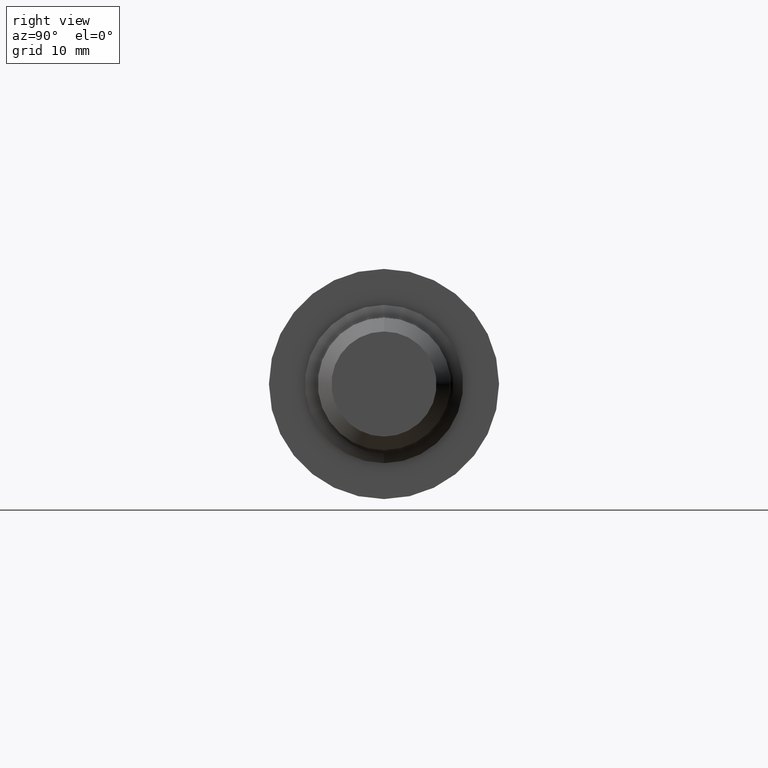
[diagram: clean part render]
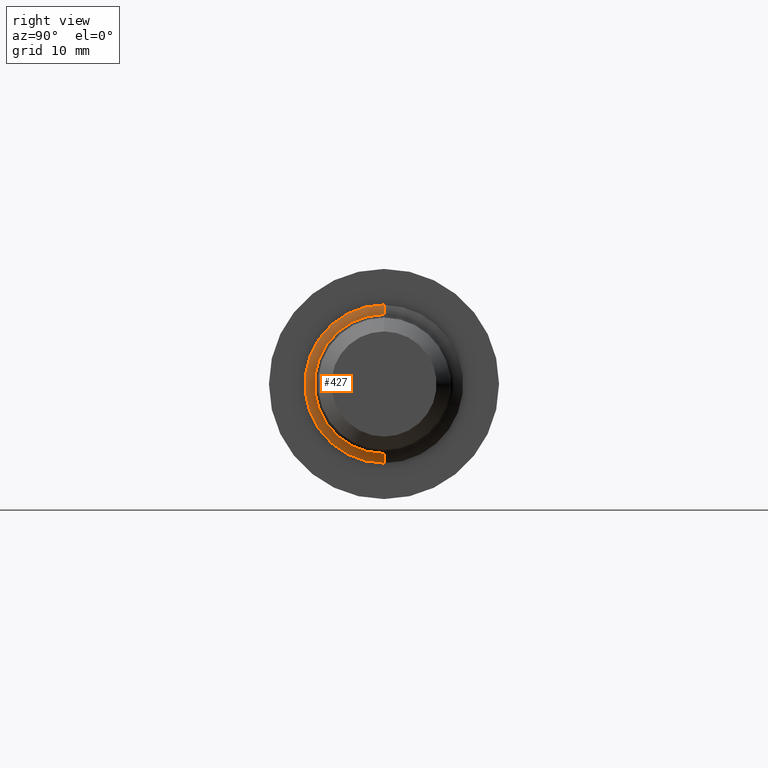
[diagram: same view with one face highlighted and labeled with its STEP entity id]
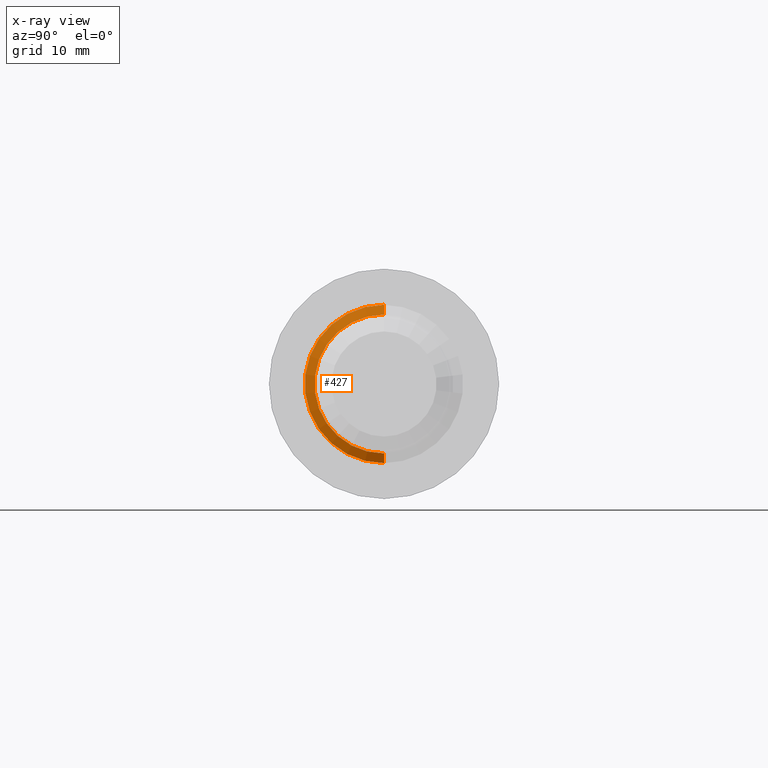
[diagram: x-ray of the same camera — body ghosted, the highlighted face saturated]
A machine part, right view. The second image highlights one B-rep face of the part: STEP entity #427.
The next image is the same camera in x-ray: the body ghosted, the highlighted face saturated — about 0% of this face is hidden behind the body in this view.
In plain terms, the highlighted conical surface has half-angle 60 deg.
Its self-contained STEP definition (entity closure, byte-faithful):
#4 = CARTESIAN_POINT ( 'NONE',  ( 2.753479651413640372, 0.000000000000000000, 0.3055999999999998162 ) ) ;
#8 = VECTOR ( 'NONE', #114, 39.37007874015748143 ) ;
#9 = CARTESIAN_POINT ( 'NONE',  ( 2.753479651413640372, 0.000000000000000000, 0.000000000000000000 ) ) ;
#18 = AXIS2_PLACEMENT_3D ( 'NONE', #9, #399, #62 ) ;
#28 = ORIENTED_EDGE ( 'NONE', *, *, #84, .F. ) ;
#35 = VERTEX_POINT ( 'NONE', #272 ) ;
#37 = CARTESIAN_POINT ( 'NONE',  ( 2.753479651413640372, 0.000000000000000000, 0.000000000000000000 ) ) ;
#62 = DIRECTION ( 'NONE',  ( 0.000000000000000000, 0.000000000000000000, 1.000000000000000000 ) ) ;
#74 = EDGE_CURVE ( 'NONE', #472, #35, #157, .T. ) ;
#84 = EDGE_CURVE ( 'NONE', #489, #210, #437, .T. ) ;
#111 = EDGE_CURVE ( 'NONE', #210, #35, #691, .T. ) ;
#114 = DIRECTION ( 'NONE',  ( -0.5000000000000093259, 0.000000000000000000, 0.8660254037844331565 ) ) ;
#145 = DIRECTION ( 'NONE',  ( 0.000000000000000000, 0.000000000000000000, 1.000000000000000000 ) ) ;
#157 = LINE ( 'NONE', #278, #8 ) ;
#178 = ORIENTED_EDGE ( 'NONE', *, *, #680, .T. ) ;
#190 = DIRECTION ( 'NONE',  ( -1.000000000000000000, -0.000000000000000000, -0.000000000000000000 ) ) ;
#210 = VERTEX_POINT ( 'NONE', #569 ) ;
#243 = FACE_OUTER_BOUND ( 'NONE', #364, .T. ) ;
#272 = CARTESIAN_POINT ( 'NONE',  ( 2.728999999999999648, 0.000000000000000000, 0.3479999999999999760 ) ) ;
#278 = CARTESIAN_POINT ( 'NONE',  ( 2.753479651413640372, 0.000000000000000000, 0.3056000000000003713 ) ) ;
#294 = DIRECTION ( 'NONE',  ( -1.000000000000000000, -0.000000000000000000, -0.000000000000000000 ) ) ;
#321 = CONICAL_SURFACE ( 'NONE', #642, 0.3056000000000003713, 1.047197551196586973 ) ;
#322 = CARTESIAN_POINT ( 'NONE',  ( 2.753479651413640372, 3.742520618194316303E-17, -0.3056000000000003713 ) ) ;
#327 = DIRECTION ( 'NONE',  ( -0.5000000000000093259, 1.060575238724900259E-16, -0.8660254037844331565 ) ) ;
#337 = ORIENTED_EDGE ( 'NONE', *, *, #74, .T. ) ;
#364 = EDGE_LOOP ( 'NONE', ( #28, #178, #337, #420 ) ) ;
#371 = CARTESIAN_POINT ( 'NONE',  ( 2.728999999999999648, 0.000000000000000000, 0.000000000000000000 ) ) ;
#391 = AXIS2_PLACEMENT_3D ( 'NONE', #371, #294, #615 ) ;
#399 = DIRECTION ( 'NONE',  ( -1.000000000000000000, -0.000000000000000000, -0.000000000000000000 ) ) ;
#414 = VECTOR ( 'NONE', #327, 39.37007874015748143 ) ;
#420 = ORIENTED_EDGE ( 'NONE', *, *, #111, .F. ) ;
#427 = ADVANCED_FACE ( 'NONE', ( #243 ), #321, .T. ) ;
#428 = CARTESIAN_POINT ( 'NONE',  ( 2.753479651413640372, 3.742520618194309524E-17, -0.3055999999999998162 ) ) ;
#437 = LINE ( 'NONE', #322, #414 ) ;
#472 = VERTEX_POINT ( 'NONE', #4 ) ;
#489 = VERTEX_POINT ( 'NONE', #428 ) ;
#551 = CIRCLE ( 'NONE', #18, 0.3056000000000003713 ) ;
#569 = CARTESIAN_POINT ( 'NONE',  ( 2.728999999999999648, 4.261770861032788352E-17, -0.3479999999999999760 ) ) ;
#615 = DIRECTION ( 'NONE',  ( 0.000000000000000000, 0.000000000000000000, 1.000000000000000000 ) ) ;
#642 = AXIS2_PLACEMENT_3D ( 'NONE', #37, #190, #145 ) ;
#680 = EDGE_CURVE ( 'NONE', #489, #472, #551, .T. ) ;
#691 = CIRCLE ( 'NONE', #391, 0.3479999999999999760 ) ;